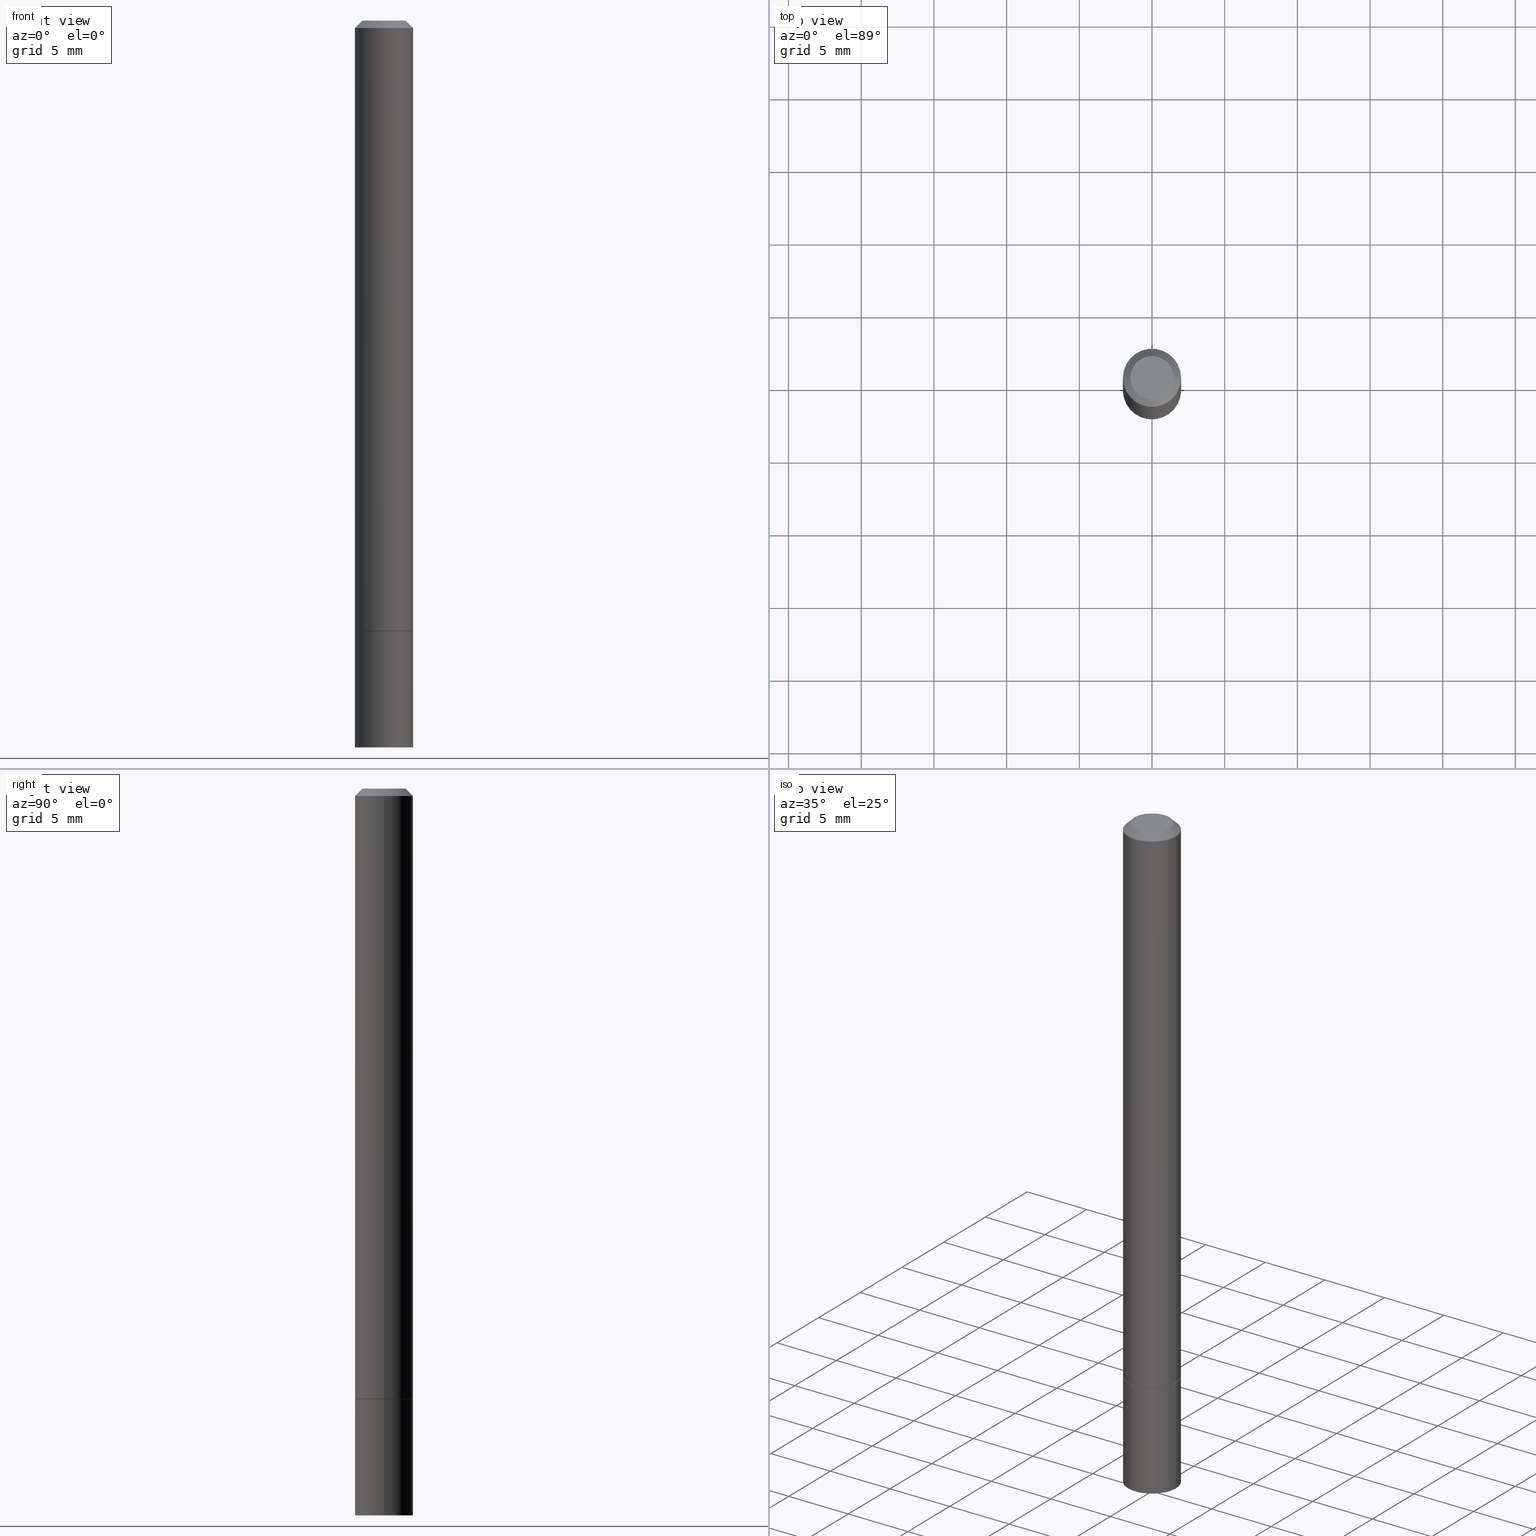
[diagram: canonical four-view strip — front | top / right | iso, engineering-drawing reading convention]
A machine part, canonical four-view strip (front | top / right | iso — engineering-drawing reading convention). The complete STEP part file that produces these views, byte-faithful:
ISO-10303-21;
HEADER;
FILE_DESCRIPTION (( 'STEP AP203' ),
    '1' );
FILE_NAME ('49310.STEP',
    '2024-02-28T18:00:04',
    ( '' ),
    ( '' ),
    'SwSTEP 2.0',
    'SolidWorks 2023',
    '' );
FILE_SCHEMA (( 'CONFIG_CONTROL_DESIGN' ));
ENDSEC;

DATA;
#1 = DIRECTION ( 'NONE',  ( 1.000000000000000000, -6.982962677686266711E-15, 4.876176775795935793E-29 ) ) ;
#2 = PRODUCT ( '49310', '49310', '', ( #250 ) ) ;
#3 = DIRECTION ( 'NONE',  ( 1.000000000000000000, -6.982962677686266711E-15, 0.000000000000000000 ) ) ;
#4 = CARTESIAN_POINT ( 'NONE',  ( 4.043582671027123201E-29, -5.773164393777141072E-15, -1.653499999999999970 ) ) ;
#5 = DIRECTION ( 'NONE',  ( 1.000000000000000000, -6.982962677686261977E-15, 0.000000000000000000 ) ) ;
#6 = AXIS2_PLACEMENT_3D ( 'NONE', #117, #95, #294 ) ;
#7 = UNCERTAINTY_MEASURE_WITH_UNIT (LENGTH_MEASURE( 1.000000000000000082E-05 ), #184, 'distance_accuracy_value', 'NONE');
#8 = LINE ( 'NONE', #29, #126 ) ;
#9 = ADVANCED_FACE ( 'NONE', ( #224 ), #363, .T. ) ;
#10 = DIRECTION ( 'NONE',  ( -2.445468806185136597E-29, 3.491481338843145583E-15, 1.000000000000000000 ) ) ;
#11 = DIRECTION ( 'NONE',  ( 1.000000000000000000, -6.982962677686266711E-15, 4.876176775795935793E-29 ) ) ;
#12 = ORIENTED_EDGE ( 'NONE', *, *, #68, .T. ) ;
#13 = FACE_OUTER_BOUND ( 'NONE', #362, .T. ) ;
#14 = CIRCLE ( 'NONE', #328, 0.07875000000000000056 ) ;
#15 = APPROVAL_PERSON_ORGANIZATION ( #356, #31, #96 ) ;
#16 = PERSON_AND_ORGANIZATION ( #228, #310 ) ;
#17 = DIRECTION ( 'NONE',  ( -2.445468806185136877E-29, 3.491481338843145188E-15, 1.000000000000000000 ) ) ;
#18 = CIRCLE ( 'NONE', #94, 0.07874999999999980627 ) ;
#19 = PERSON_AND_ORGANIZATION_ROLE ( 'classification_officer' ) ;
#20 = EDGE_LOOP ( 'NONE', ( #197, #331 ) ) ;
#21 = APPROVAL_STATUS ( 'not_yet_approved' ) ;
#22 = VERTEX_POINT ( 'NONE', #135 ) ;
#23 = CALENDAR_DATE ( 2024, 28, 2 ) ;
#24 = ORIENTED_EDGE ( 'NONE', *, *, #252, .T. ) ;
#25 = CC_DESIGN_PERSON_AND_ORGANIZATION_ASSIGNMENT ( #100, #358, ( #244 ) ) ;
#26 = CIRCLE ( 'NONE', #263, 0.07774999999999999967 ) ;
#27 = PERSON_AND_ORGANIZATION ( #228, #310 ) ;
#28 = ORIENTED_EDGE ( 'NONE', *, *, #163, .T. ) ;
#29 = CARTESIAN_POINT ( 'NONE',  ( 0.07874999999999980627, -6.100938441013697087E-16, -0.02000000000000001776 ) ) ;
#30 = CARTESIAN_POINT ( 'NONE',  ( 0.07774999999999999967, -6.316089741967246825E-15, -1.653499999999999748 ) ) ;
#31 = APPROVAL ( #21, 'UNSPECIFIED' ) ;
#32 = CARTESIAN_POINT ( 'NONE',  ( 0.07874999999999988953, -5.499083108677927540E-16, 3.839989210939294112E-30 ) ) ;
#33 = CARTESIAN_POINT ( 'NONE',  ( 0.07875000000000000056, -5.499083108677934443E-16, 3.839989210939299016E-30 ) ) ;
#34 = CARTESIAN_POINT ( 'NONE',  ( -0.07774999999999999967, -5.220717416723661700E-15, -1.653499999999999748 ) ) ;
#35 = AXIS2_PLACEMENT_3D ( 'NONE', #130, #343, #1 ) ;
#36 = DIRECTION ( 'NONE',  ( 1.000000000000000000, -6.982962677686266711E-15, 0.000000000000000000 ) ) ;
#37 = DIRECTION ( 'NONE',  ( 1.000000000000000000, -6.982962677686261977E-15, 0.000000000000000000 ) ) ;
#38 = CC_DESIGN_PERSON_AND_ORGANIZATION_ASSIGNMENT ( #72, #330, ( #2 ) ) ;
#39 = CARTESIAN_POINT ( 'NONE',  ( 0.000000000000000000, 0.000000000000000000, 0.000000000000000000 ) ) ;
#40 = VERTEX_POINT ( 'NONE', #251 ) ;
#41 = DIRECTION ( 'NONE',  ( 1.000000000000000000, -6.982962677686266711E-15, 4.876176775795935793E-29 ) ) ;
#42 = AXIS2_PLACEMENT_3D ( 'NONE', #43, #332, #216 ) ;
#43 = CARTESIAN_POINT ( 'NONE',  ( 0.000000000000000000, 0.000000000000000000, 0.000000000000000000 ) ) ;
#44 = ORIENTED_EDGE ( 'NONE', *, *, #321, .F. ) ;
#45 = COORDINATED_UNIVERSAL_TIME_OFFSET ( 5, 0, .BEHIND. ) ;
#46 = ORIENTED_EDGE ( 'NONE', *, *, #278, .T. ) ;
#47 = DATE_AND_TIME ( #277, #319 ) ;
#48 = CC_DESIGN_PERSON_AND_ORGANIZATION_ASSIGNMENT ( #166, #19, ( #107 ) ) ;
#49 = ORIENTED_EDGE ( 'NONE', *, *, #314, .F. ) ;
#50 = VERTEX_POINT ( 'NONE', #137 ) ;
#51 = CIRCLE ( 'NONE', #148, 0.07874999999999997280 ) ;
#52 = LOCAL_TIME ( 13, 0, 4.000000000000000000, #336 ) ;
#53 = VERTEX_POINT ( 'NONE', #253 ) ;
#54 = DIRECTION ( 'NONE',  ( -2.445468806185136597E-29, 3.491481338843145583E-15, 1.000000000000000000 ) ) ;
#55 = LINE ( 'NONE', #172, #105 ) ;
#56 = LINE ( 'NONE', #32, #274 ) ;
#57 = DIRECTION ( 'NONE',  ( 1.000000000000000000, -6.982962677686264344E-15, 0.000000000000000000 ) ) ;
#58 = EDGE_CURVE ( 'NONE', #323, #133, #223, .T. ) ;
#59 = DIRECTION ( 'NONE',  ( -2.445468806185136597E-29, 3.491481338843145583E-15, 1.000000000000000000 ) ) ;
#60 = VECTOR ( 'NONE', #83, 39.37007874015748143 ) ;
#61 = CARTESIAN_POINT ( 'NONE',  ( 4.813905344975441835E-29, -6.872981015512731707E-15, -1.968500000000000139 ) ) ;
#62 = PRODUCT_RELATED_PRODUCT_CATEGORY ( 'detail', '', ( #2 ) ) ;
#63 = PLANE ( 'NONE',  #6 ) ;
#64 = LENGTH_MEASURE_WITH_UNIT ( LENGTH_MEASURE( 0.02539999999999999897 ), #239 );
#65 = VECTOR ( 'NONE', #176, 39.37007874015748143 ) ;
#66 = CARTESIAN_POINT ( 'NONE',  ( 5.499083108678337748E-16, 0.07874999999999422740, -1.653500000000000192 ) ) ;
#67 = APPROVAL_DATE_TIME ( #222, #208 ) ;
#68 = EDGE_CURVE ( 'NONE', #194, #167, #155, .T. ) ;
#69 = COORDINATED_UNIVERSAL_TIME_OFFSET ( 5, 0, .BEHIND. ) ;
#70 = ORIENTED_EDGE ( 'NONE', *, *, #171, .T. ) ;
#71 = ORIENTED_EDGE ( 'NONE', *, *, #221, .T. ) ;
#72 = PERSON_AND_ORGANIZATION ( #228, #310 ) ;
#73 = EDGE_LOOP ( 'NONE', ( #12, #162 ) ) ;
#74 = APPROVAL_STATUS ( 'not_yet_approved' ) ;
#75 = EDGE_LOOP ( 'NONE', ( #284, #28, #192, #364 ) ) ;
#76 = ORIENTED_EDGE ( 'NONE', *, *, #106, .T. ) ;
#77 =( GEOMETRIC_REPRESENTATION_CONTEXT ( 3 ) GLOBAL_UNCERTAINTY_ASSIGNED_CONTEXT ( ( #7 ) ) GLOBAL_UNIT_ASSIGNED_CONTEXT ( ( #184, #268, #361 ) ) REPRESENTATION_CONTEXT ( 'NONE', 'WORKASPACE' ) );
#78 = CARTESIAN_POINT ( 'NONE',  ( 0.07875000000000000056, -6.323072704644934417E-15, -1.653499999999999970 ) ) ;
#79 = ADVANCED_FACE ( 'NONE', ( #341 ), #291, .F. ) ;
#80 = DIRECTION ( 'NONE',  ( 2.445468806185136597E-29, -3.491481338843145583E-15, -1.000000000000000000 ) ) ;
#81 = CARTESIAN_POINT ( 'NONE',  ( 4.890937612370276662E-31, -6.982962677686296539E-17, -0.02000000000000001776 ) ) ;
#82 = EDGE_CURVE ( 'NONE', #50, #323, #113, .T. ) ;
#83 = DIRECTION ( 'NONE',  ( 0.7071067811866138531, -2.468850131082952047E-15, 0.7071067811864811814 ) ) ;
#84 = CARTESIAN_POINT ( 'NONE',  ( 4.890937612370276662E-31, -6.982962677686296539E-17, -0.02000000000000001776 ) ) ;
#85 = ADVANCED_BREP_SHAPE_REPRESENTATION ( '49310', ( #159, #290, #42 ), #77 ) ;
#86 = CARTESIAN_POINT ( 'NONE',  ( 0.000000000000000000, 0.000000000000000000, 0.000000000000000000 ) ) ;
#87 = DIRECTION ( 'NONE',  ( -2.445468806185136597E-29, 3.491481338843145583E-15, 1.000000000000000000 ) ) ;
#88 = CC_DESIGN_PERSON_AND_ORGANIZATION_ASSIGNMENT ( #27, #300, ( #244 ) ) ;
#89 = CARTESIAN_POINT ( 'NONE',  ( 0.000000000000000000, 0.000000000000000000, 0.000000000000000000 ) ) ;
#90 = CARTESIAN_POINT ( 'NONE',  ( 4.890937612370276662E-31, -6.982962677686296539E-17, -0.02000000000000001776 ) ) ;
#91 = VERTEX_POINT ( 'NONE', #78 ) ;
#92 = CIRCLE ( 'NONE', #325, 0.05874999999999985095 ) ;
#93 = EDGE_CURVE ( 'NONE', #53, #323, #281, .T. ) ;
#94 = AXIS2_PLACEMENT_3D ( 'NONE', #84, #111, #3 ) ;
#95 = DIRECTION ( 'NONE',  ( 2.438088387897960049E-29, -3.491481338843145188E-15, -1.000000000000000000 ) ) ;
#96 = APPROVAL_ROLE ( '' ) ;
#97 = ORIENTED_EDGE ( 'NONE', *, *, #221, .F. ) ;
#98 = APPLICATION_PROTOCOL_DEFINITION ( 'international standard', 'config_control_design', 1994, #121 ) ;
#99 = ORIENTED_EDGE ( 'NONE', *, *, #139, .F. ) ;
#100 = PERSON_AND_ORGANIZATION ( #228, #310 ) ;
#101 = ORIENTED_EDGE ( 'NONE', *, *, #132, .F. ) ;
#102 = ORIENTED_EDGE ( 'NONE', *, *, #82, .T. ) ;
#103 = APPLICATION_PROTOCOL_DEFINITION ( 'international standard', 'config_control_design', 1994, #214 ) ;
#104 = EDGE_LOOP ( 'NONE', ( #158, #24, #311, #152 ) ) ;
#105 = VECTOR ( 'NONE', #200, 39.37007874015748143 ) ;
#106 = EDGE_CURVE ( 'NONE', #323, #53, #51, .T. ) ;
#107 = SECURITY_CLASSIFICATION ( '', '', #193 ) ;
#108 = CYLINDRICAL_SURFACE ( 'NONE', #213, 0.07874999999999988953 ) ;
#109 = AXIS2_PLACEMENT_3D ( 'NONE', #202, #260, #203 ) ;
#110 = DIRECTION ( 'NONE',  ( -2.445468806185136597E-29, 3.491481338843145583E-15, 1.000000000000000000 ) ) ;
#111 = DIRECTION ( 'NONE',  ( -2.445468806185136597E-29, 3.491481338843145583E-15, 1.000000000000000000 ) ) ;
#112 = APPROVAL ( #283, 'UNSPECIFIED' ) ;
#113 = LINE ( 'NONE', #34, #65 ) ;
#114 = AXIS2_PLACEMENT_3D ( 'NONE', #318, #317, #57 ) ;
#115 = VECTOR ( 'NONE', #207, 39.37007874015748143 ) ;
#116 = FACE_OUTER_BOUND ( 'NONE', #353, .T. ) ;
#117 = CARTESIAN_POINT ( 'NONE',  ( 5.499083108678415648E-16, 0.07874999999999311717, -1.968500000000000361 ) ) ;
#118 = DIRECTION ( 'NONE',  ( 1.000000000000000000, -6.982962677686261977E-15, 0.000000000000000000 ) ) ;
#119 = EDGE_CURVE ( 'NONE', #40, #22, #55, .T. ) ;
#120 = DIRECTION ( 'NONE',  ( -2.445468806185136597E-29, 3.491481338843145583E-15, 1.000000000000000000 ) ) ;
#121 = APPLICATION_CONTEXT ( 'configuration controlled 3d designs of mechanical parts and assemblies' ) ;
#122 = DIRECTION ( 'NONE',  ( 1.000000000000000000, -6.982962677686265922E-15, 4.876176775795935232E-29 ) ) ;
#123 = ORIENTED_EDGE ( 'NONE', *, *, #68, .F. ) ;
#124 = CC_DESIGN_DATE_AND_TIME_ASSIGNMENT ( #246, #305, ( #107 ) ) ;
#125 = DIRECTION ( 'NONE',  ( 1.000000000000000000, -6.982962677686261977E-15, 0.000000000000000000 ) ) ;
#126 = VECTOR ( 'NONE', #312, 39.37007874015748143 ) ;
#127 = CC_DESIGN_APPROVAL ( #31, ( #107 ) ) ;
#128 = AXIS2_PLACEMENT_3D ( 'NONE', #313, #261, #5 ) ;
#129 = PERSON_AND_ORGANIZATION ( #228, #310 ) ;
#130 = CARTESIAN_POINT ( 'NONE',  ( 0.000000000000000000, 0.000000000000000000, 0.000000000000000000 ) ) ;
#131 = PERSON_AND_ORGANIZATION_ROLE ( 'creator' ) ;
#132 = EDGE_CURVE ( 'NONE', #220, #91, #262, .T. ) ;
#133 = VERTEX_POINT ( 'NONE', #174 ) ;
#134 = APPROVAL_DATE_TIME ( #47, #31 ) ;
#135 = CARTESIAN_POINT ( 'NONE',  ( -0.07875000000000000056, -5.763520300233858771E-15, -1.653499999999999970 ) ) ;
#136 = VECTOR ( 'NONE', #17, 39.37007874015748143 ) ;
#137 = CARTESIAN_POINT ( 'NONE',  ( -0.07774999999999999967, -5.215418962375440876E-15, -1.653499999999999748 ) ) ;
#138 = ORIENTED_EDGE ( 'NONE', *, *, #106, .F. ) ;
#139 = EDGE_CURVE ( 'NONE', #53, #304, #56, .T. ) ;
#140 = CARTESIAN_POINT ( 'NONE',  ( 4.041137202220937598E-29, -5.769672912438298064E-15, -1.652499999999999858 ) ) ;
#141 = AXIS2_PLACEMENT_3D ( 'NONE', #289, #54, #142 ) ;
#142 = DIRECTION ( 'NONE',  ( 1.000000000000000000, -6.982962677686261977E-15, 0.000000000000000000 ) ) ;
#143 = FACE_OUTER_BOUND ( 'NONE', #247, .T. ) ;
#144 = ADVANCED_FACE ( 'NONE', ( #116 ), #234, .F. ) ;
#145 = DIRECTION ( 'NONE',  ( -2.445468806185136877E-29, 3.491481338843145188E-15, 1.000000000000000000 ) ) ;
#146 = CIRCLE ( 'NONE', #354, 0.07874999999999980627 ) ;
#147 = DIRECTION ( 'NONE',  ( 1.000000000000000000, -6.982962677686264344E-15, 0.000000000000000000 ) ) ;
#148 = AXIS2_PLACEMENT_3D ( 'NONE', #140, #110, #147 ) ;
#149 = FACE_OUTER_BOUND ( 'NONE', #104, .T. ) ;
#150 = ADVANCED_FACE ( 'NONE', ( #173 ), #181, .T. ) ;
#151 = PLANE ( 'NONE',  #225 ) ;
#152 = ORIENTED_EDGE ( 'NONE', *, *, #180, .F. ) ;
#153 = FACE_OUTER_BOUND ( 'NONE', #269, .T. ) ;
#154 = LOCAL_TIME ( 13, 0, 4.000000000000000000, #307 ) ;
#155 = CIRCLE ( 'NONE', #35, 0.05874999999999985095 ) ;
#156 = DIRECTION ( 'NONE',  ( -2.445468806185136597E-29, 3.491481338843145583E-15, 1.000000000000000000 ) ) ;
#157 = PRODUCT_DEFINITION ( 'UNKNOWN', '', #244, #334 ) ;
#158 = ORIENTED_EDGE ( 'NONE', *, *, #119, .F. ) ;
#159 = MANIFOLD_SOLID_BREP ( 'Body-Move/Copy2[1]', #315 ) ;
#160 = CIRCLE ( 'NONE', #309, 0.07875000000000000056 ) ;
#161 = APPROVAL_ROLE ( '' ) ;
#162 = ORIENTED_EDGE ( 'NONE', *, *, #270, .T. ) ;
#163 = EDGE_CURVE ( 'NONE', #167, #304, #8, .T. ) ;
#164 = CALENDAR_DATE ( 2024, 28, 2 ) ;
#165 = ORIENTED_EDGE ( 'NONE', *, *, #93, .T. ) ;
#166 = PERSON_AND_ORGANIZATION ( #228, #310 ) ;
#167 = VERTEX_POINT ( 'NONE', #347 ) ;
#168 = CIRCLE ( 'NONE', #233, 0.07875000000000000056 ) ;
#169 = APPROVAL_PERSON_ORGANIZATION ( #16, #208, #275 ) ;
#170 = DIRECTION ( 'NONE',  ( 2.445468806185136597E-29, -3.491481338843145583E-15, -1.000000000000000000 ) ) ;
#171 = EDGE_CURVE ( 'NONE', #133, #304, #18, .T. ) ;
#172 = CARTESIAN_POINT ( 'NONE',  ( -0.07875000000000000056, 5.595524044110789003E-16, -3.873661383575737792E-30 ) ) ;
#173 = FACE_OUTER_BOUND ( 'NONE', #75, .T. ) ;
#174 = CARTESIAN_POINT ( 'NONE',  ( -0.07874999999999980627, 4.800786840909291600E-16, -0.02000000000000001776 ) ) ;
#175 = DIRECTION ( 'NONE',  ( -2.445468806185136597E-29, 3.491481338843145583E-15, 1.000000000000000000 ) ) ;
#176 = DIRECTION ( 'NONE',  ( -0.7071067811866138531, 7.493145998870593974E-15, 0.7071067811864811814 ) ) ;
#177 = CONICAL_SURFACE ( 'NONE', #292, 0.07774999999999999967, 0.7853981633975420928 ) ;
#178 = DIRECTION ( 'NONE',  ( -1.000000000000000000, 6.982962677686265922E-15, -4.876176775795935793E-29 ) ) ;
#179 = CC_DESIGN_SECURITY_CLASSIFICATION ( #107, ( #244 ) ) ;
#180 = EDGE_CURVE ( 'NONE', #22, #91, #301, .T. ) ;
#181 = CONICAL_SURFACE ( 'NONE', #345, 0.07874999999999980627, 0.7853981633974468357 ) ;
#182 = DIRECTION ( 'NONE',  ( 1.000000000000000000, -6.982962677686265922E-15, 4.876176775795935232E-29 ) ) ;
#183 = CYLINDRICAL_SURFACE ( 'NONE', #243, 0.07875000000000000056 ) ;
#184 =( CONVERSION_BASED_UNIT ( 'INCH', #64 ) LENGTH_UNIT ( ) NAMED_UNIT ( #236 ) );
#185 = AXIS2_PLACEMENT_3D ( 'NONE', #351, #237, #182 ) ;
#186 = COORDINATED_UNIVERSAL_TIME_OFFSET ( 5, 0, .BEHIND. ) ;
#187 = CALENDAR_DATE ( 2024, 28, 2 ) ;
#188 = ORIENTED_EDGE ( 'NONE', *, *, #119, .T. ) ;
#189 = AXIS2_PLACEMENT_3D ( 'NONE', #39, #267, #11 ) ;
#190 = ADVANCED_FACE ( 'NONE', ( #255 ), #108, .T. ) ;
#191 = PERSON_AND_ORGANIZATION ( #228, #310 ) ;
#192 = ORIENTED_EDGE ( 'NONE', *, *, #338, .T. ) ;
#193 = SECURITY_CLASSIFICATION_LEVEL ( 'unclassified' ) ;
#194 = VERTEX_POINT ( 'NONE', #227 ) ;
#195 = DATE_TIME_ROLE ( 'creation_date' ) ;
#196 = CC_DESIGN_PERSON_AND_ORGANIZATION_ASSIGNMENT ( #191, #131, ( #157 ) ) ;
#197 = ORIENTED_EDGE ( 'NONE', *, *, #321, .T. ) ;
#198 = CIRCLE ( 'NONE', #128, 0.07774999999999999967 ) ;
#199 = ORIENTED_EDGE ( 'NONE', *, *, #245, .T. ) ;
#200 = DIRECTION ( 'NONE',  ( -2.445468806185136877E-29, 3.491481338843145188E-15, 1.000000000000000000 ) ) ;
#201 = DIRECTION ( 'NONE',  ( 1.000000000000000000, -6.982962677686261977E-15, 0.000000000000000000 ) ) ;
#202 = CARTESIAN_POINT ( 'NONE',  ( 4.043582671027122641E-29, -5.773164393777140283E-15, -1.653499999999999748 ) ) ;
#203 = DIRECTION ( 'NONE',  ( 1.000000000000000000, -6.982962677686265922E-15, 4.876176775795935793E-29 ) ) ;
#204 = DIRECTION ( 'NONE',  ( -1.000000000000000000, 6.982962677686265922E-15, -4.876176775795935793E-29 ) ) ;
#205 = ADVANCED_FACE ( 'NONE', ( #143 ), #340, .T. ) ;
#206 = FACE_OUTER_BOUND ( 'NONE', #279, .T. ) ;
#207 = DIRECTION ( 'NONE',  ( -0.7071067811865464625, 2.468850131082245622E-15, -0.7071067811865485719 ) ) ;
#208 = APPROVAL ( #74, 'UNSPECIFIED' ) ;
#209 = DIRECTION ( 'NONE',  ( 1.000000000000000000, -6.982962677686261977E-15, 0.000000000000000000 ) ) ;
#210 = CARTESIAN_POINT ( 'NONE',  ( -0.07874999999999980627, 4.800786840909291600E-16, -0.02000000000000001776 ) ) ;
#211 = ORIENTED_EDGE ( 'NONE', *, *, #58, .F. ) ;
#212 = CLOSED_SHELL ( 'NONE', ( #205, #190, #150, #9, #359, #238, #144, #79 ) ) ;
#213 = AXIS2_PLACEMENT_3D ( 'NONE', #231, #229, #316 ) ;
#214 = APPLICATION_CONTEXT ( 'configuration controlled 3d designs of mechanical parts and assemblies' ) ;
#215 = FACE_OUTER_BOUND ( 'NONE', #302, .T. ) ;
#216 = DIRECTION ( 'NONE',  ( 1.000000000000000000, 0.000000000000000000, 0.000000000000000000 ) ) ;
#217 = ORIENTED_EDGE ( 'NONE', *, *, #82, .F. ) ;
#218 = VERTEX_POINT ( 'NONE', #30 ) ;
#219 = CC_DESIGN_APPROVAL ( #112, ( #244 ) ) ;
#220 = VERTEX_POINT ( 'NONE', #258 ) ;
#221 = EDGE_CURVE ( 'NONE', #218, #50, #198, .T. ) ;
#222 = DATE_AND_TIME ( #271, #282 ) ;
#223 = LINE ( 'NONE', #339, #136 ) ;
#224 = FACE_OUTER_BOUND ( 'NONE', #333, .T. ) ;
#225 = AXIS2_PLACEMENT_3D ( 'NONE', #66, #265, #178 ) ;
#226 = AXIS2_PLACEMENT_3D ( 'NONE', #4, #175, #201 ) ;
#227 = CARTESIAN_POINT ( 'NONE',  ( -0.05874999999999985095, 4.451638707024981026E-16, -2.990994270918719090E-30 ) ) ;
#228 = PERSON ( 'UNSPECIFIED', 'UNSPECIFIED', 'UNSPECIFIED', ('UNSPECIFIED'), ('UNSPECIFIED'), ('UNSPECIFIED') ) ;
#229 = DIRECTION ( 'NONE',  ( -2.445468806185136597E-29, 3.491481338843145583E-15, 1.000000000000000000 ) ) ;
#230 = EDGE_CURVE ( 'NONE', #218, #53, #232, .T. ) ;
#231 = CARTESIAN_POINT ( 'NONE',  ( 0.000000000000000000, 0.000000000000000000, 0.000000000000000000 ) ) ;
#232 = LINE ( 'NONE', #346, #60 ) ;
#233 = AXIS2_PLACEMENT_3D ( 'NONE', #235, #10, #125 ) ;
#234 = PLANE ( 'NONE',  #109 ) ;
#235 = CARTESIAN_POINT ( 'NONE',  ( 4.813905344975441835E-29, -6.872981015512731707E-15, -1.968500000000000139 ) ) ;
#236 = DIMENSIONAL_EXPONENTS ( 1.000000000000000000, 0.000000000000000000, 0.000000000000000000, 0.000000000000000000, 0.000000000000000000, 0.000000000000000000, 0.000000000000000000 ) ;
#237 = DIRECTION ( 'NONE',  ( -2.445468806185136597E-29, 3.491481338843145583E-15, 1.000000000000000000 ) ) ;
#238 = ADVANCED_FACE ( 'NONE', ( #153 ), #177, .T. ) ;
#239 =( LENGTH_UNIT ( ) NAMED_UNIT ( * ) SI_UNIT ( $, .METRE. ) );
#240 = DIRECTION ( 'NONE',  ( 1.000000000000000000, -6.982962677686261977E-15, 0.000000000000000000 ) ) ;
#241 = ORIENTED_EDGE ( 'NONE', *, *, #314, .T. ) ;
#242 = CARTESIAN_POINT ( 'NONE',  ( 0.07874999999999980627, -6.100938441013697087E-16, -0.02000000000000001776 ) ) ;
#243 = AXIS2_PLACEMENT_3D ( 'NONE', #86, #327, #122 ) ;
#244 = PRODUCT_DEFINITION_FORMATION_WITH_SPECIFIED_SOURCE ( 'ANY', '', #2, .NOT_KNOWN. ) ;
#245 = EDGE_CURVE ( 'NONE', #194, #133, #355, .T. ) ;
#246 = DATE_AND_TIME ( #164, #293 ) ;
#247 = EDGE_LOOP ( 'NONE', ( #71, #102, #357, #366 ) ) ;
#248 = DATE_AND_TIME ( #23, #52 ) ;
#249 = ORIENTED_EDGE ( 'NONE', *, *, #58, .T. ) ;
#250 = MECHANICAL_CONTEXT ( 'NONE', #214, 'mechanical' ) ;
#251 = CARTESIAN_POINT ( 'NONE',  ( -0.07875000000000000056, -5.763520300233858771E-15, -1.968500000000000139 ) ) ;
#252 = EDGE_CURVE ( 'NONE', #40, #220, #14, .T. ) ;
#253 = CARTESIAN_POINT ( 'NONE',  ( 0.07874999999999997280, -6.319581223306091410E-15, -1.652499999999999858 ) ) ;
#254 = ORIENTED_EDGE ( 'NONE', *, *, #278, .F. ) ;
#255 = FACE_OUTER_BOUND ( 'NONE', #276, .T. ) ;
#256 = VECTOR ( 'NONE', #285, 39.37007874015748143 ) ;
#257 = ADVANCED_FACE ( 'NONE', ( #206 ), #183, .T. ) ;
#258 = CARTESIAN_POINT ( 'NONE',  ( 0.07875000000000000056, -7.422889326380525053E-15, -1.968500000000000139 ) ) ;
#259 = PRODUCT_DEFINITION_SHAPE ( 'NONE', 'NONE',  #157 ) ;
#260 = DIRECTION ( 'NONE',  ( -2.438088387897960049E-29, 3.491481338843145188E-15, 1.000000000000000000 ) ) ;
#261 = DIRECTION ( 'NONE',  ( -2.445468806185136597E-29, 3.491481338843145583E-15, 1.000000000000000000 ) ) ;
#262 = LINE ( 'NONE', #33, #256 ) ;
#263 = AXIS2_PLACEMENT_3D ( 'NONE', #320, #156, #240 ) ;
#264 = CYLINDRICAL_SURFACE ( 'NONE', #189, 0.07874999999999988953 ) ;
#265 = DIRECTION ( 'NONE',  ( 2.438088387897960049E-29, -3.491481338843145188E-15, -1.000000000000000000 ) ) ;
#266 = ORIENTED_EDGE ( 'NONE', *, *, #163, .F. ) ;
#267 = DIRECTION ( 'NONE',  ( -2.445468806185136597E-29, 3.491481338843145583E-15, 1.000000000000000000 ) ) ;
#268 =( NAMED_UNIT ( * ) PLANE_ANGLE_UNIT ( ) SI_UNIT ( $, .RADIAN. ) );
#269 = EDGE_LOOP ( 'NONE', ( #217, #46, #360, #138 ) ) ;
#270 = EDGE_CURVE ( 'NONE', #167, #194, #92, .T. ) ;
#271 = CALENDAR_DATE ( 2024, 28, 2 ) ;
#272 = CARTESIAN_POINT ( 'NONE',  ( 4.890937612370276662E-31, -6.982962677686296539E-17, -0.02000000000000001776 ) ) ;
#273 = APPROVAL_PERSON_ORGANIZATION ( #129, #112, #161 ) ;
#274 = VECTOR ( 'NONE', #145, 39.37007874015748143 ) ;
#275 = APPROVAL_ROLE ( '' ) ;
#276 = EDGE_LOOP ( 'NONE', ( #165, #249, #308, #99 ) ) ;
#277 = CALENDAR_DATE ( 2024, 28, 2 ) ;
#278 = EDGE_CURVE ( 'NONE', #50, #218, #26, .T. ) ;
#279 = EDGE_LOOP ( 'NONE', ( #241, #188, #44, #101 ) ) ;
#280 = ORIENTED_EDGE ( 'NONE', *, *, #139, .T. ) ;
#281 = CIRCLE ( 'NONE', #114, 0.07874999999999997280 ) ;
#282 = LOCAL_TIME ( 13, 0, 4.000000000000000000, #69 ) ;
#283 = APPROVAL_STATUS ( 'not_yet_approved' ) ;
#284 = ORIENTED_EDGE ( 'NONE', *, *, #270, .F. ) ;
#285 = DIRECTION ( 'NONE',  ( -2.445468806185136877E-29, 3.491481338843145188E-15, 1.000000000000000000 ) ) ;
#286 = ADVANCED_FACE ( 'NONE', ( #149 ), #322, .T. ) ;
#287 = DIRECTION ( 'NONE',  ( -1.000000000000000000, 6.982962677686266711E-15, 0.000000000000000000 ) ) ;
#288 = DIRECTION ( 'NONE',  ( 2.438088387897960049E-29, -3.491481338843145188E-15, -1.000000000000000000 ) ) ;
#289 = CARTESIAN_POINT ( 'NONE',  ( 4.043582671027122641E-29, -5.773164393777140283E-15, -1.653499999999999748 ) ) ;
#290 = MANIFOLD_SOLID_BREP ( 'Body-Move/Copy2[2]', #212 ) ;
#291 = PLANE ( 'NONE',  #344 ) ;
#292 = AXIS2_PLACEMENT_3D ( 'NONE', #348, #87, #37 ) ;
#293 = LOCAL_TIME ( 13, 0, 4.000000000000000000, #186 ) ;
#294 = DIRECTION ( 'NONE',  ( -1.000000000000000000, 6.982962677686265922E-15, -4.876176775795935793E-29 ) ) ;
#295 = FACE_OUTER_BOUND ( 'NONE', #20, .T. ) ;
#296 = ADVANCED_FACE ( 'NONE', ( #295 ), #151, .F. ) ;
#297 = DIRECTION ( 'NONE',  ( -2.445468806185136597E-29, 3.491481338843145583E-15, 1.000000000000000000 ) ) ;
#298 = AXIS2_PLACEMENT_3D ( 'NONE', #272, #170, #335 ) ;
#299 = SHAPE_DEFINITION_REPRESENTATION ( #259, #85 ) ;
#300 = PERSON_AND_ORGANIZATION_ROLE ( 'creator' ) ;
#301 = CIRCLE ( 'NONE', #226, 0.07875000000000000056 ) ;
#302 = EDGE_LOOP ( 'NONE', ( #211, #76, #280, #337 ) ) ;
#303 = DATE_AND_TIME ( #187, #154 ) ;
#304 = VERTEX_POINT ( 'NONE', #242 ) ;
#305 = DATE_TIME_ROLE ( 'classification_date' ) ;
#306 = ORIENTED_EDGE ( 'NONE', *, *, #252, .F. ) ;
#307 = COORDINATED_UNIVERSAL_TIME_OFFSET ( 5, 0, .BEHIND. ) ;
#308 = ORIENTED_EDGE ( 'NONE', *, *, #338, .F. ) ;
#309 = AXIS2_PLACEMENT_3D ( 'NONE', #352, #324, #118 ) ;
#310 = ORGANIZATION ( 'UNSPECIFIED', 'UNSPECIFIED', '' ) ;
#311 = ORIENTED_EDGE ( 'NONE', *, *, #132, .T. ) ;
#312 = DIRECTION ( 'NONE',  ( 0.7071067811865464625, -7.319954787623252890E-15, -0.7071067811865485719 ) ) ;
#313 = CARTESIAN_POINT ( 'NONE',  ( 4.043582671027122641E-29, -5.773164393777140283E-15, -1.653499999999999748 ) ) ;
#314 = EDGE_CURVE ( 'NONE', #220, #40, #168, .T. ) ;
#315 = CLOSED_SHELL ( 'NONE', ( #257, #326, #296, #286 ) ) ;
#316 = DIRECTION ( 'NONE',  ( 1.000000000000000000, -6.982962677686266711E-15, 4.876176775795935793E-29 ) ) ;
#317 = DIRECTION ( 'NONE',  ( -2.445468806185136597E-29, 3.491481338843145583E-15, 1.000000000000000000 ) ) ;
#318 = CARTESIAN_POINT ( 'NONE',  ( 4.041137202220937598E-29, -5.769672912438298064E-15, -1.652499999999999858 ) ) ;
#319 = LOCAL_TIME ( 13, 0, 4.000000000000000000, #45 ) ;
#320 = CARTESIAN_POINT ( 'NONE',  ( 4.043582671027122641E-29, -5.773164393777140283E-15, -1.653499999999999748 ) ) ;
#321 = EDGE_CURVE ( 'NONE', #91, #22, #160, .T. ) ;
#322 = CYLINDRICAL_SURFACE ( 'NONE', #185, 0.07875000000000000056 ) ;
#323 = VERTEX_POINT ( 'NONE', #350 ) ;
#324 = DIRECTION ( 'NONE',  ( -2.445468806185136597E-29, 3.491481338843145583E-15, 1.000000000000000000 ) ) ;
#325 = AXIS2_PLACEMENT_3D ( 'NONE', #89, #59, #41 ) ;
#326 = ADVANCED_FACE ( 'NONE', ( #13 ), #63, .T. ) ;
#327 = DIRECTION ( 'NONE',  ( -2.445468806185136597E-29, 3.491481338843145583E-15, 1.000000000000000000 ) ) ;
#328 = AXIS2_PLACEMENT_3D ( 'NONE', #61, #120, #209 ) ;
#329 = APPROVAL_DATE_TIME ( #303, #112 ) ;
#330 = PERSON_AND_ORGANIZATION_ROLE ( 'design_owner' ) ;
#331 = ORIENTED_EDGE ( 'NONE', *, *, #180, .T. ) ;
#332 = DIRECTION ( 'NONE',  ( 0.000000000000000000, 0.000000000000000000, 1.000000000000000000 ) ) ;
#333 = EDGE_LOOP ( 'NONE', ( #266, #123, #199, #70 ) ) ;
#334 = DESIGN_CONTEXT ( 'detailed design', #121, 'design' ) ;
#335 = DIRECTION ( 'NONE',  ( -1.000000000000000000, 6.982962677686266711E-15, 0.000000000000000000 ) ) ;
#336 = COORDINATED_UNIVERSAL_TIME_OFFSET ( 5, 0, .BEHIND. ) ;
#337 = ORIENTED_EDGE ( 'NONE', *, *, #171, .F. ) ;
#338 = EDGE_CURVE ( 'NONE', #304, #133, #146, .T. ) ;
#339 = CARTESIAN_POINT ( 'NONE',  ( -0.07874999999999988953, 5.595524044110781115E-16, -3.873661383575732887E-30 ) ) ;
#340 = CONICAL_SURFACE ( 'NONE', #141, 0.07774999999999999967, 0.7853981633975420928 ) ;
#341 = FACE_OUTER_BOUND ( 'NONE', #73, .T. ) ;
#342 = CARTESIAN_POINT ( 'NONE',  ( 4.102490573140670944E-16, 0.05874999999999985095, -2.051245286570342868E-16 ) ) ;
#343 = DIRECTION ( 'NONE',  ( -2.445468806185136597E-29, 3.491481338843145583E-15, 1.000000000000000000 ) ) ;
#344 = AXIS2_PLACEMENT_3D ( 'NONE', #342, #288, #204 ) ;
#345 = AXIS2_PLACEMENT_3D ( 'NONE', #81, #80, #287 ) ;
#346 = CARTESIAN_POINT ( 'NONE',  ( 0.07774999999999999967, -6.316089741967246825E-15, -1.653499999999999748 ) ) ;
#347 = CARTESIAN_POINT ( 'NONE',  ( 0.05874999999999985095, -5.065740507352231227E-16, 3.205406768517976639E-30 ) ) ;
#348 = CARTESIAN_POINT ( 'NONE',  ( 4.043582671027122641E-29, -5.773164393777140283E-15, -1.653499999999999748 ) ) ;
#349 = CC_DESIGN_APPROVAL ( #208, ( #157 ) ) ;
#350 = CARTESIAN_POINT ( 'NONE',  ( -0.07874999999999997280, -2.360198865196498330E-15, -1.652499999999999858 ) ) ;
#351 = CARTESIAN_POINT ( 'NONE',  ( 0.000000000000000000, 0.000000000000000000, 0.000000000000000000 ) ) ;
#352 = CARTESIAN_POINT ( 'NONE',  ( 4.043582671027123201E-29, -5.773164393777141072E-15, -1.653499999999999970 ) ) ;
#353 = EDGE_LOOP ( 'NONE', ( #97, #254 ) ) ;
#354 = AXIS2_PLACEMENT_3D ( 'NONE', #90, #297, #36 ) ;
#355 = LINE ( 'NONE', #210, #115 ) ;
#356 = PERSON_AND_ORGANIZATION ( #228, #310 ) ;
#357 = ORIENTED_EDGE ( 'NONE', *, *, #93, .F. ) ;
#358 = PERSON_AND_ORGANIZATION_ROLE ( 'design_supplier' ) ;
#359 = ADVANCED_FACE ( 'NONE', ( #215 ), #264, .T. ) ;
#360 = ORIENTED_EDGE ( 'NONE', *, *, #230, .T. ) ;
#361 =( NAMED_UNIT ( * ) SI_UNIT ( $, .STERADIAN. ) SOLID_ANGLE_UNIT ( ) );
#362 = EDGE_LOOP ( 'NONE', ( #49, #306 ) ) ;
#363 = CONICAL_SURFACE ( 'NONE', #298, 0.07874999999999980627, 0.7853981633974468357 ) ;
#364 = ORIENTED_EDGE ( 'NONE', *, *, #245, .F. ) ;
#365 = CC_DESIGN_DATE_AND_TIME_ASSIGNMENT ( #248, #195, ( #157 ) ) ;
#366 = ORIENTED_EDGE ( 'NONE', *, *, #230, .F. ) ;
ENDSEC;
END-ISO-10303-21;
